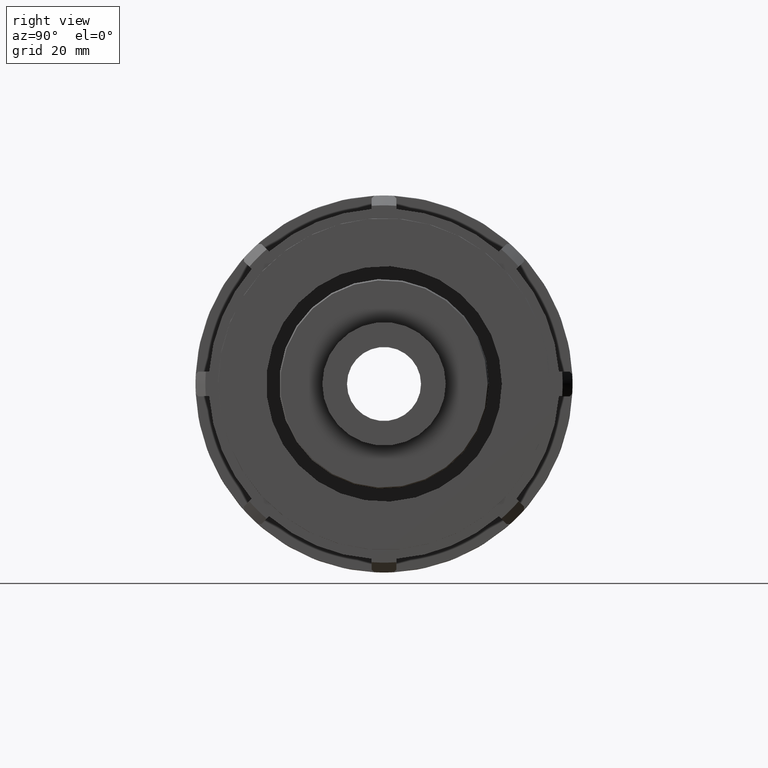
[diagram: clean part render]
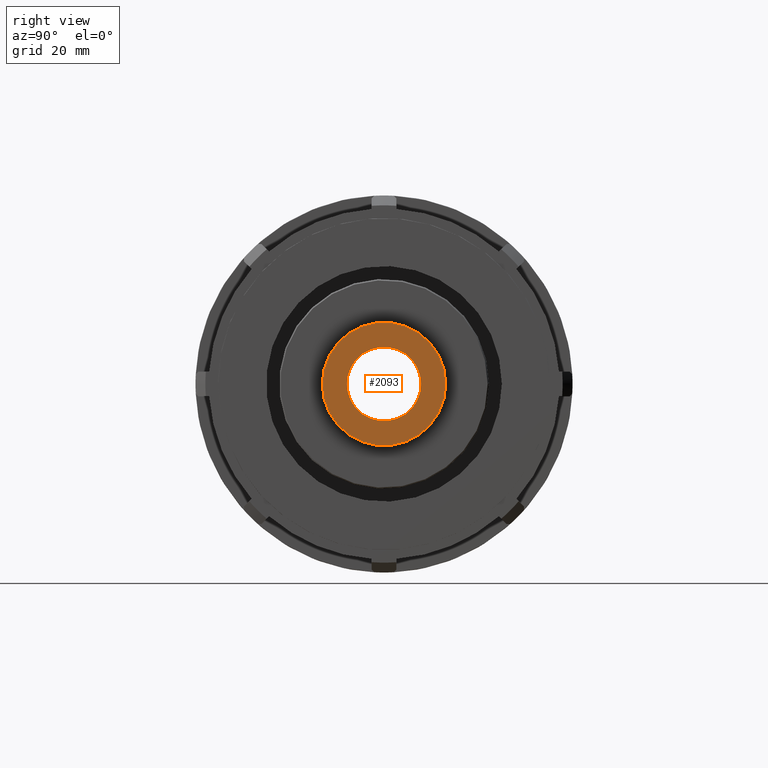
[diagram: same view with one face highlighted and labeled with its STEP entity id]
A machine part, right view. The second image highlights one B-rep face of the part: STEP entity #2093.
In plain terms, the highlighted planar face has unit normal (1, 0, 0).
Its self-contained STEP definition (entity closure, byte-faithful):
#80=FACE_BOUND('',#448,.T.);
#154=CIRCLE('',#2270,6.2865);
#165=CIRCLE('',#2294,10.4775);
#310=FACE_OUTER_BOUND('',#447,.T.);
#447=EDGE_LOOP('',(#1903));
#448=EDGE_LOOP('',(#1904));
#1002=VERTEX_POINT('',#3522);
#1013=VERTEX_POINT('',#3557);
#1299=EDGE_CURVE('',#1002,#1002,#154,.T.);
#1310=EDGE_CURVE('',#1013,#1013,#165,.T.);
#1903=ORIENTED_EDGE('',*,*,#1310,.T.);
#1904=ORIENTED_EDGE('',*,*,#1299,.F.);
#1978=PLANE('',#2295);
#2093=ADVANCED_FACE('',(#310,#80),#1978,.T.);
#2270=AXIS2_PLACEMENT_3D('',#3523,#2826,#2827);
#2294=AXIS2_PLACEMENT_3D('',#3558,#2874,#2875);
#2295=AXIS2_PLACEMENT_3D('',#3559,#2876,#2877);
#2826=DIRECTION('center_axis',(1.,0.,0.));
#2827=DIRECTION('ref_axis',(0.,0.,-1.));
#2874=DIRECTION('center_axis',(1.,0.,0.));
#2875=DIRECTION('ref_axis',(0.,0.,-1.));
#2876=DIRECTION('center_axis',(1.,0.,0.));
#2877=DIRECTION('ref_axis',(0.,0.,-1.));
#3522=CARTESIAN_POINT('',(85.,6.2865,0.));
#3523=CARTESIAN_POINT('Origin',(85.,0.,0.));
#3557=CARTESIAN_POINT('',(85.,10.4775,0.));
#3558=CARTESIAN_POINT('Origin',(85.,0.,0.));
#3559=CARTESIAN_POINT('Origin',(85.,6.2865,0.));